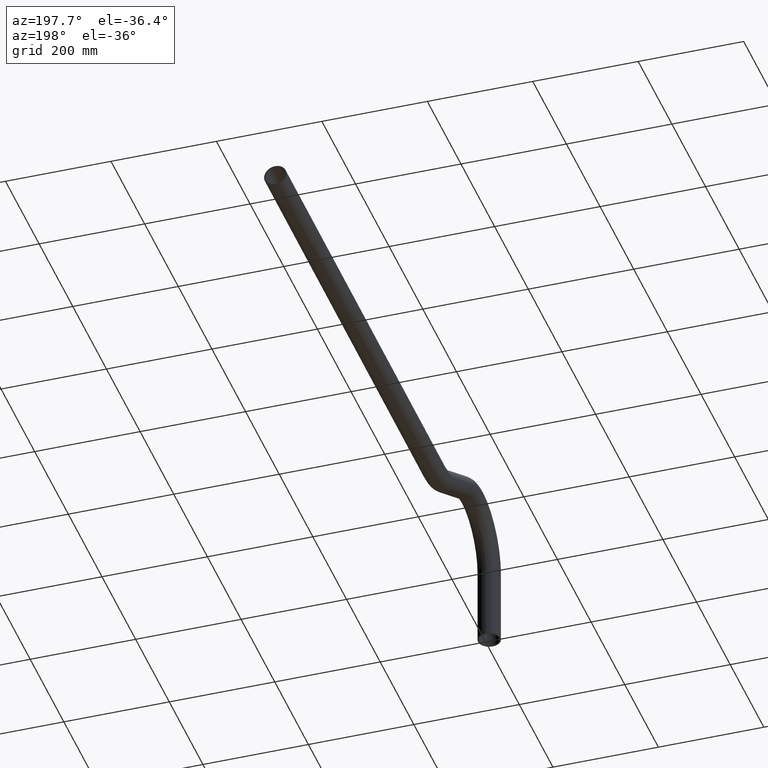
[diagram: clean part render]
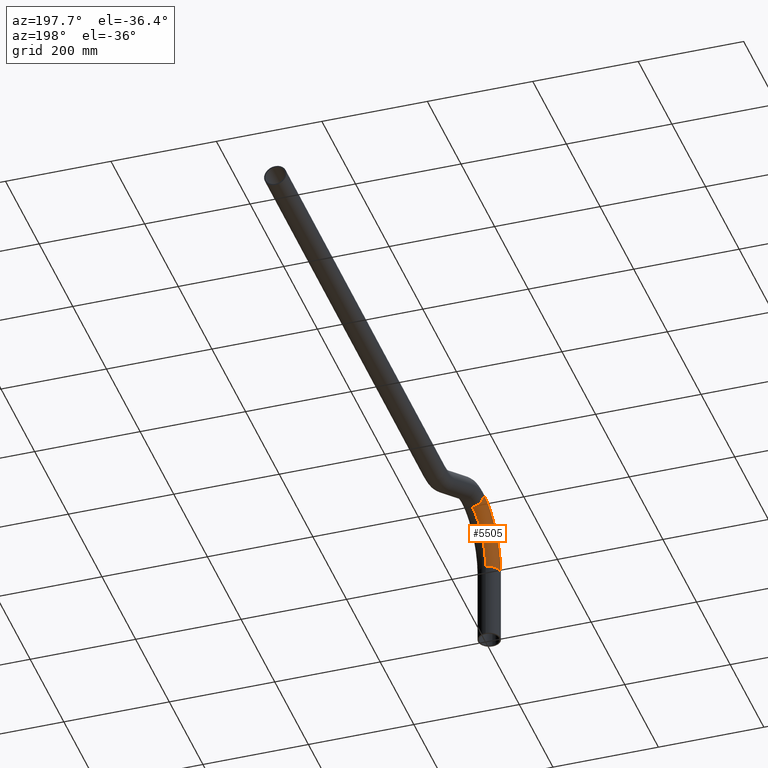
[diagram: same view with one face highlighted and labeled with its STEP entity id]
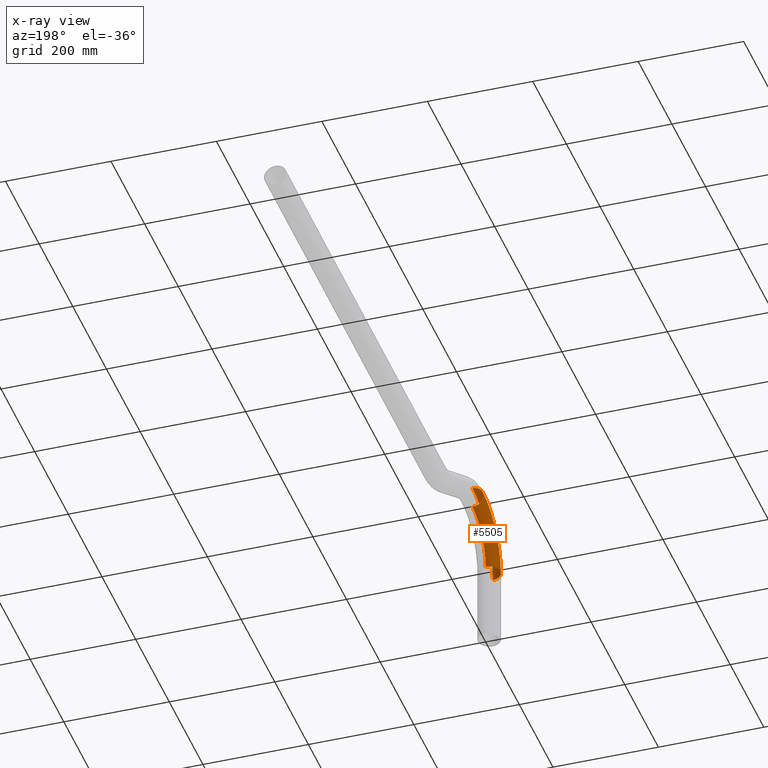
[diagram: x-ray of the same camera — body ghosted, the highlighted face saturated]
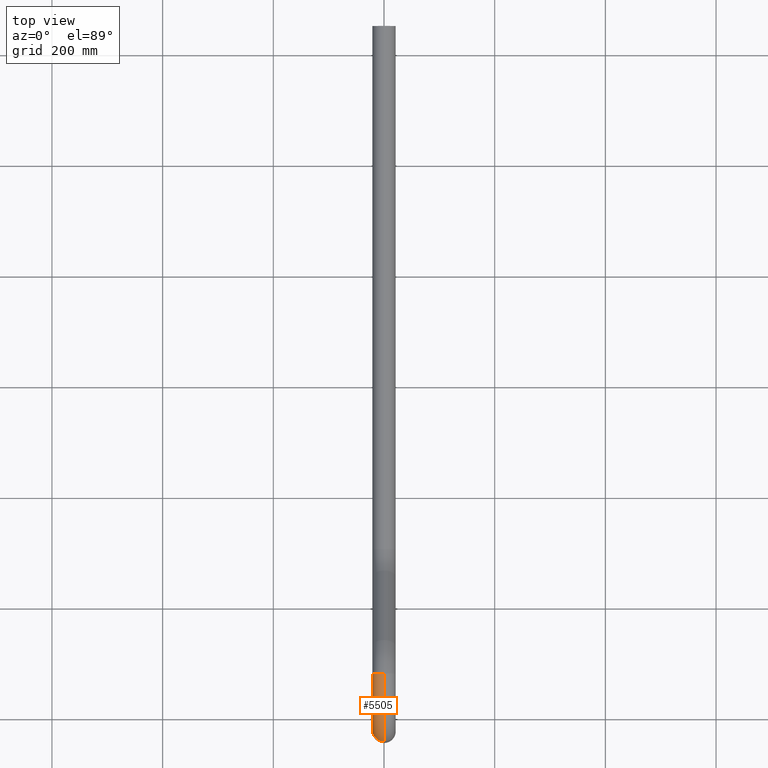
[diagram: same view with one face highlighted and labeled with its STEP entity id]
A machine part, auxiliary view. The second image highlights one B-rep face of the part: STEP entity #5505.
The next image is the same camera in x-ray: the body ghosted, the highlighted face saturated — about 0% of this face is hidden behind the body in this view.
A second angle (top view) of the same face is appended — the face is thin or edge-on in the first view.
In plain terms, the highlighted toroidal blend (fillet) surface has major radius 100 mm and minor (blend) radius 21.2 mm.
Its self-contained STEP definition (entity closure, byte-faithful):
#256 = AXIS2_PLACEMENT_3D ( 'NONE', #2306, #6036, #8800 ) ;
#328 = AXIS2_PLACEMENT_3D ( 'NONE', #1437, #10420, #8886 ) ;
#475 = CIRCLE ( 'NONE', #2404, 78.79999999999998300 ) ;
#526 = ORIENTED_EDGE ( 'NONE', *, *, #1194, .T. ) ;
#1146 = FACE_OUTER_BOUND ( 'NONE', #7762, .T. ) ;
#1194 = EDGE_CURVE ( 'NONE', #3451, #9891, #2869, .T. ) ;
#1271 = AXIS2_PLACEMENT_3D ( 'NONE', #6494, #2416, #8094 ) ;
#1437 = CARTESIAN_POINT ( 'NONE',  ( 0.0000000000000000000, 78.79999999999957100, 174.4000000000000100 ) ) ;
#2288 = CARTESIAN_POINT ( 'NONE',  ( 0.0000000000000000000, 78.79999999999957100, 195.5999999999999900 ) ) ;
#2306 = CARTESIAN_POINT ( 'NONE',  ( 0.0000000000000000000, 78.79999999999957100, 74.40000000000002000 ) ) ;
#2404 = AXIS2_PLACEMENT_3D ( 'NONE', #7962, #3010, #8915 ) ;
#2416 = DIRECTION ( 'NONE',  ( 0.0000000000000000000, 0.0000000000000000000, 1.000000000000000000 ) ) ;
#2869 = CIRCLE ( 'NONE', #1271, 21.19999999999999900 ) ;
#3010 = DIRECTION ( 'NONE',  ( -1.000000000000000000, -0.0000000000000000000, 0.0000000000000000000 ) ) ;
#3013 = CARTESIAN_POINT ( 'NONE',  ( 0.0000000000000000000, 78.79999999999957100, 74.40000000000002000 ) ) ;
#3451 = VERTEX_POINT ( 'NONE', #4117 ) ;
#3939 = ORIENTED_EDGE ( 'NONE', *, *, #7435, .F. ) ;
#4001 = CARTESIAN_POINT ( 'NONE',  ( 2.596251214192388800E-015, -42.40000000000041800, 74.39999999999996300 ) ) ;
#4117 = CARTESIAN_POINT ( 'NONE',  ( 0.0000000000000000000, -4.163336342344337000E-013, 74.39999999999996300 ) ) ;
#4718 = DIRECTION ( 'NONE',  ( 0.0000000000000000000, 0.0000000000000000000, 1.000000000000000000 ) ) ;
#4996 = ORIENTED_EDGE ( 'NONE', *, *, #6239, .T. ) ;
#5455 = DIRECTION ( 'NONE',  ( -1.000000000000000000, -0.0000000000000000000, 0.0000000000000000000 ) ) ;
#5505 = ADVANCED_FACE ( 'NONE', ( #1146 ), #10522, .T. ) ;
#5607 = VERTEX_POINT ( 'NONE', #7263 ) ;
#6036 = DIRECTION ( 'NONE',  ( -1.000000000000000000, -0.0000000000000000000, 0.0000000000000000000 ) ) ;
#6239 = EDGE_CURVE ( 'NONE', #9891, #9455, #8893, .T. ) ;
#6494 = CARTESIAN_POINT ( 'NONE',  ( 0.0000000000000000000, -21.20000000000041500, 74.39999999999996300 ) ) ;
#7263 = CARTESIAN_POINT ( 'NONE',  ( 0.0000000000000000000, 78.79999999999957100, 153.1999999999999900 ) ) ;
#7435 = EDGE_CURVE ( 'NONE', #3451, #5607, #475, .T. ) ;
#7497 = AXIS2_PLACEMENT_3D ( 'NONE', #3013, #5455, #4718 ) ;
#7762 = EDGE_LOOP ( 'NONE', ( #526, #4996, #8955, #3939 ) ) ;
#7962 = CARTESIAN_POINT ( 'NONE',  ( 2.596251214192388800E-015, 78.79999999999957100, 74.40000000000002000 ) ) ;
#8094 = DIRECTION ( 'NONE',  ( 1.000000000000000000, 0.0000000000000000000, 0.0000000000000000000 ) ) ;
#8800 = DIRECTION ( 'NONE',  ( 0.0000000000000000000, 0.0000000000000000000, 1.000000000000000000 ) ) ;
#8886 = DIRECTION ( 'NONE',  ( 0.0000000000000000000, 0.0000000000000000000, -1.000000000000000000 ) ) ;
#8893 = CIRCLE ( 'NONE', #256, 121.1999999999999700 ) ;
#8915 = DIRECTION ( 'NONE',  ( 0.0000000000000000000, 0.0000000000000000000, 1.000000000000000000 ) ) ;
#8948 = EDGE_CURVE ( 'NONE', #9455, #5607, #10245, .T. ) ;
#8955 = ORIENTED_EDGE ( 'NONE', *, *, #8948, .T. ) ;
#9455 = VERTEX_POINT ( 'NONE', #2288 ) ;
#9891 = VERTEX_POINT ( 'NONE', #4001 ) ;
#10245 = CIRCLE ( 'NONE', #328, 21.19999999999999600 ) ;
#10420 = DIRECTION ( 'NONE',  ( 0.0000000000000000000, -1.000000000000000000, 0.0000000000000000000 ) ) ;
#10522 = TOROIDAL_SURFACE ( 'NONE', #7497, 99.99999999999997200, 21.19999999999999900 ) ;